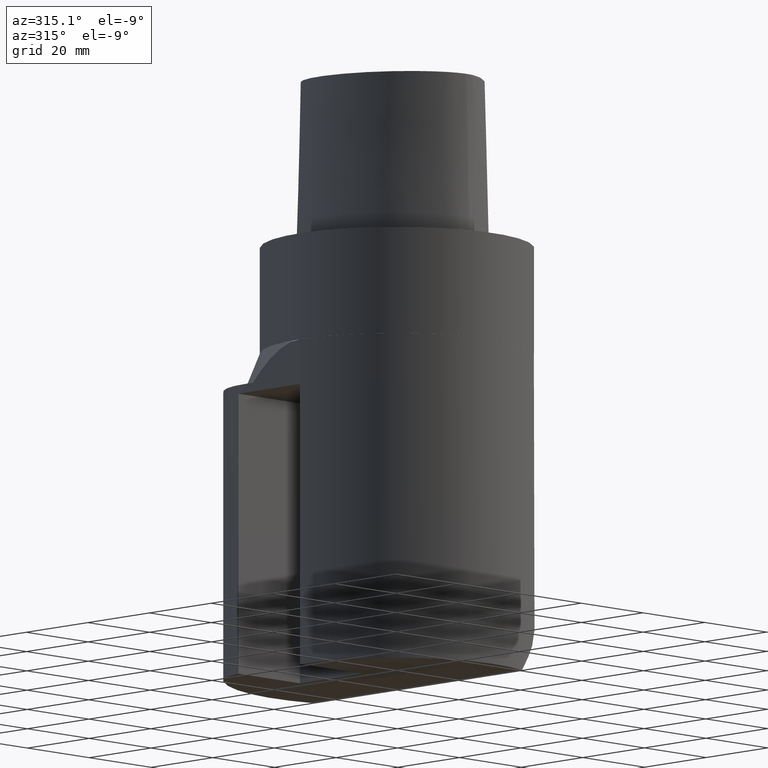
[diagram: clean part render]
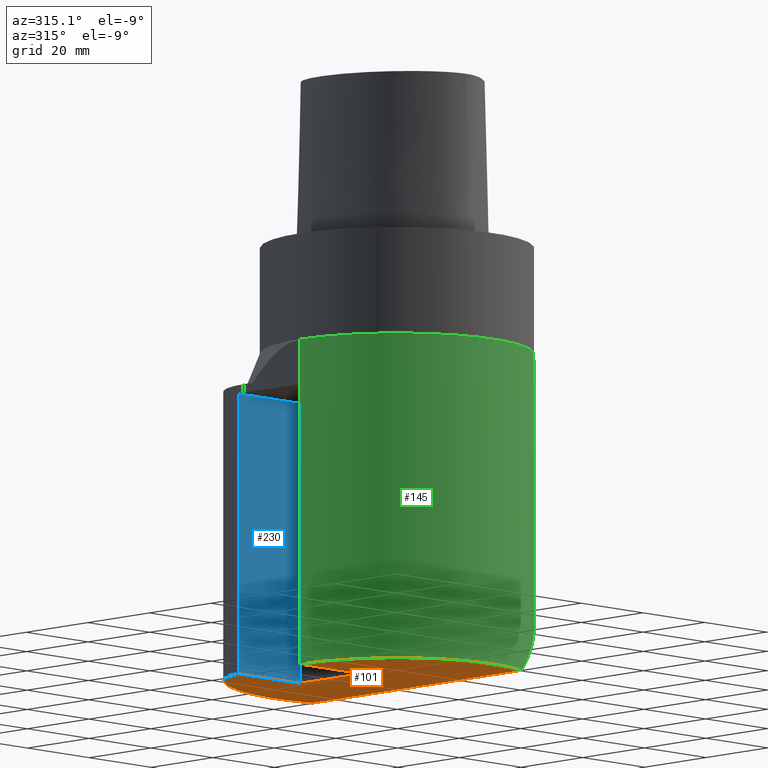
[diagram: same view with three faces highlighted in distinct colors, each labeled with its STEP entity id]
A machine part, auxiliary view with three faces highlighted in distinct colors.
Their STEP definitions:

[orange] entity #101 — the highlighted planar face has unit normal (-0, 0, 1).
#101=ADVANCED_FACE('240[2]',(#277),#278,.F.);
#151=EDGE_CURVE('240[2]',#300,#342,#357,.T.);
#168=EDGE_CURVE('240[2]',#378,#281,#379,.F.);
#192=EDGE_CURVE('240[2]',#350,#281,#408,.T.);
#197=EDGE_CURVE('240[2]',#342,#359,#415,.T.);
#236=EDGE_CURVE('240[2]',#446,#300,#461,.T.);
#238=EDGE_CURVE('240[2]',#446,#378,#463,.T.);
#240=EDGE_CURVE('240[2]',#359,#350,#465,.T.);
#277=FACE_OUTER_BOUND('',#497,.T.);
#278=PLANE('',#498);
#281=VERTEX_POINT('',#502);
#300=VERTEX_POINT('',#527);
#342=VERTEX_POINT('',#681);
#350=VERTEX_POINT('',#692);
#357=LINE('',#702,#703);
#359=VERTEX_POINT('',#706);
#378=VERTEX_POINT('',#744);
#379=LINE('',#745,#746);
#408=CIRCLE('',#890,31.5000000000001);
#415=LINE('',#899,#900);
#446=VERTEX_POINT('',#976);
#461=CIRCLE('',#999,16.0000000000003);
#463=CIRCLE('',#1002,40.0);
#465=LINE('',#1005,#1006);
#497=EDGE_LOOP('',(#1059,#1060,#1061,#1062,#1063,#1064,#1065));
#498=AXIS2_PLACEMENT_3D('',#1066,#1067,#1068);
#502=CARTESIAN_POINT('',(10.9999998252791,-29.5169443514038,-99.9999998226051));
#527=CARTESIAN_POINT('',(-31.4119228276271,20.0,-99.9999998226051));
#681=CARTESIAN_POINT('',(-11.5000000000002,20.0000000000005,-99.9999998226051));
#692=CARTESIAN_POINT('',(-31.5000000000001,-6.68634846303844E-013,-99.9999998226051));
#702=CARTESIAN_POINT('',(-10.7279807069069,20.0000000000005,-99.9999998226051));
#703=VECTOR('',#1129,1.0);
#706=CARTESIAN_POINT('',(-11.5,-2.39812849879307E-013,-99.9999998226051));
#744=CARTESIAN_POINT('',(10.9999998252788,38.457769096034,-99.9999998226051));
#745=CARTESIAN_POINT('',(10.9999998252788,-49.5,-99.9999998226051));
#746=VECTOR('',#1146,1.0);
#890=AXIS2_PLACEMENT_3D('',#1186,#1187,#1188);
#899=CARTESIAN_POINT('',(-11.5000000000002,14.95,-99.9999998226051));
#900=VECTOR('',#1197,1.0);
#976=CARTESIAN_POINT('',(-25.8333333333343,30.5391370030137,-99.9999998226051));
#999=AXIS2_PLACEMENT_3D('',#1262,#1263,#1264);
#1002=AXIS2_PLACEMENT_3D('',#1265,#1266,#1267);
#1005=CARTESIAN_POINT('',(-10.7499999999998,-2.23824056667614E-013,-99.9999998226051));
#1006=VECTOR('',#1268,1.0);
#1059=ORIENTED_EDGE('',*,*,#151,.F.);
#1060=ORIENTED_EDGE('',*,*,#236,.F.);
#1061=ORIENTED_EDGE('',*,*,#238,.T.);
#1062=ORIENTED_EDGE('',*,*,#168,.T.);
#1063=ORIENTED_EDGE('',*,*,#192,.F.);
#1064=ORIENTED_EDGE('',*,*,#240,.F.);
#1065=ORIENTED_EDGE('',*,*,#197,.F.);
#1066=CARTESIAN_POINT('',(3.67394038657976E-015,20.0,-99.9999998226051));
#1067=DIRECTION('',(-6.12323399573677E-017,1.22464679914735E-016,1.0));
#1068=DIRECTION('',(0.0,-1.0,1.22464679914735E-016));
#1129=DIRECTION('',(1.0,2.2960407294654E-014,6.12323399573649E-017));
#1146=DIRECTION('',(-1.22464679914735E-016,1.0,-1.22464679914735E-016));
#1186=CARTESIAN_POINT('',(6.12323398487446E-015,2.8421709430404E-014,-99.9999998226051));
#1187=DIRECTION('',(-6.12323399573677E-017,1.22464679914735E-016,1.0));
#1188=DIRECTION('',(-1.0,-2.44929359829471E-016,-6.12323399573677E-017));
#1197=DIRECTION('',(1.41926178632825E-014,-1.0,1.22464679914736E-016));
#1262=CARTESIAN_POINT('',(-15.5000000000002,18.3234822018082,-99.9999998226051));
#1263=DIRECTION('',(-6.12323399573677E-017,1.22464679914735E-016,1.0));
#1264=DIRECTION('',(-1.0,-2.44929359829471E-016,-6.12323399573677E-017));
#1265=CARTESIAN_POINT('',(6.12323398487446E-015,0.0,-99.9999998226051));
#1266=DIRECTION('',(6.12323399573677E-017,-1.22464679914735E-016,-1.0));
#1267=DIRECTION('',(-1.22464679914735E-016,1.0,-1.22464679914735E-016));
#1268=DIRECTION('',(-1.0,-2.1440865831655E-014,-6.12323399573651E-017));

[blue] entity #230 — the highlighted planar face has unit normal (0, -1, 0).
#114=EDGE_CURVE('240[2]',#300,#301,#302,.F.);
#142=EDGE_CURVE('240[2]',#342,#343,#344,.T.);
#151=EDGE_CURVE('240[2]',#300,#342,#357,.T.);
#206=EDGE_CURVE('240[2]',#343,#301,#425,.T.);
#230=ADVANCED_FACE('240[2]',(#454),#455,.T.);
#300=VERTEX_POINT('',#527);
#301=VERTEX_POINT('',#528);
#302=LINE('',#529,#530);
#342=VERTEX_POINT('',#681);
#343=VERTEX_POINT('',#682);
#344=LINE('',#683,#684);
#357=LINE('',#702,#703);
#425=LINE('',#914,#915);
#454=FACE_OUTER_BOUND('',#989,.T.);
#455=PLANE('',#990);
#527=CARTESIAN_POINT('',(-31.4119228276271,20.0,-99.9999998226051));
#528=CARTESIAN_POINT('',(-31.4119228276272,20.0,-34.9999998226051));
#529=CARTESIAN_POINT('',(-31.4119228276271,20.0000000000003,-244.999999822605));
#530=VECTOR('',#1085,1.0);
#681=CARTESIAN_POINT('',(-11.5000000000002,20.0000000000005,-99.9999998226051));
#682=CARTESIAN_POINT('',(-11.5000000000002,20.0000000000005,-34.9999998226051));
#683=CARTESIAN_POINT('',(-11.5000000000002,20.0000000000005,-244.999999822605));
#684=VECTOR('',#1114,1.0);
#702=CARTESIAN_POINT('',(-10.7279807069069,20.0000000000005,-99.9999998226051));
#703=VECTOR('',#1129,1.0);
#914=CARTESIAN_POINT('',(-11.5000000000002,20.0000000000005,-34.9999998226051));
#915=VECTOR('',#1213,1.0);
#989=EDGE_LOOP('',(#1249,#1250,#1251,#1252));
#990=AXIS2_PLACEMENT_3D('',#1253,#1254,#1255);
#1085=DIRECTION('',(6.12323399573677E-017,-1.22464679914735E-016,-1.0));
#1114=DIRECTION('',(-6.12323399573677E-017,1.22464679914735E-016,1.0));
#1129=DIRECTION('',(1.0,2.2960407294654E-014,6.12323399573649E-017));
#1213=DIRECTION('',(-1.0,-2.2960407294654E-014,-6.12323399573649E-017));
#1249=ORIENTED_EDGE('',*,*,#206,.T.);
#1250=ORIENTED_EDGE('',*,*,#114,.F.);
#1251=ORIENTED_EDGE('',*,*,#151,.T.);
#1252=ORIENTED_EDGE('',*,*,#142,.T.);
#1253=CARTESIAN_POINT('',(-21.4559614138137,20.0000000000003,-244.999999822605));
#1254=DIRECTION('',(3.44350954537625E-046,-1.0,1.2246467991421E-016));
#1255=DIRECTION('',(-1.0,0.0,2.81183893003969E-030));

[green] entity #145 — the highlighted cylindrical surface (partial cylindrical patch) has radius 31.5 mm, axis along (0, -0, -1).
#103=EDGE_CURVE('240[2]',#280,#281,#282,.T.);
#145=ADVANCED_FACE('240[2]',(#347),#348,.T.);
#147=EDGE_CURVE('240[2]',#350,#311,#351,.T.);
#190=EDGE_CURVE('240[2]',#371,#280,#406,.T.);
#192=EDGE_CURVE('240[2]',#350,#281,#408,.T.);
#234=EDGE_CURVE('240[2]',#371,#304,#459,.T.);
#242=EDGE_CURVE('240[2]',#311,#304,#467,.T.);
#280=VERTEX_POINT('',#501);
#281=VERTEX_POINT('',#502);
#282=ELLIPSE('',#503,44.5477272147523,31.5000000000001);
#304=VERTEX_POINT('',#533);
#311=VERTEX_POINT('',#551);
#347=FACE_OUTER_BOUND('',#688,.T.);
#348=CYLINDRICAL_SURFACE('',#689,31.5000000000001);
#350=VERTEX_POINT('',#692);
#351=LINE('',#693,#694);
#371=VERTEX_POINT('',#726);
#406=ELLIPSE('',#887,361.421967238607,31.5000000000001);
#408=CIRCLE('',#890,31.5000000000001);
#459=CIRCLE('',#996,31.5000000000001);
#467=LINE('',#1009,#1010);
#501=CARTESIAN_POINT('',(26.175122523835,-17.5246386799338,-84.824877124049));
#502=CARTESIAN_POINT('',(10.9999998252791,-29.5169443514038,-99.9999998226051));
#503=AXIS2_PLACEMENT_3D('',#1069,#1070,#1071);
#533=CARTESIAN_POINT('',(-31.5000000000003,-3.97903932025656E-013,-24.5943962641397));
#551=CARTESIAN_POINT('',(-31.5000000000002,-5.15078432459043E-013,-34.9999998226051));
#688=EDGE_LOOP('',(#1116,#1117,#1118,#1119,#1120,#1121));
#689=AXIS2_PLACEMENT_3D('',#1122,#1123,#1124);
#692=CARTESIAN_POINT('',(-31.5000000000001,-6.68634846303844E-013,-99.9999998226051));
#693=CARTESIAN_POINT('',(-31.5000000000001,-6.86392221660319E-013,-244.999999822605));
#694=VECTOR('',#1125,1.0);
#726=CARTESIAN_POINT('',(31.4446067977921,-1.86727162787003,-24.5943962641391));
#887=AXIS2_PLACEMENT_3D('',#1183,#1184,#1185);
#890=AXIS2_PLACEMENT_3D('',#1186,#1187,#1188);
#996=AXIS2_PLACEMENT_3D('',#1259,#1260,#1261);
#1009=CARTESIAN_POINT('',(-31.5000000000003,-4.2632564145606E-013,-244.999999822605));
#1010=VECTOR('',#1269,1.0);
#1069=CARTESIAN_POINT('',(6.79678971370691E-015,0.0,-110.999999647884));
#1070=DIRECTION('',(0.707106781186542,-1.40316553605932E-030,-0.707106781186553));
#1071=DIRECTION('',(-0.707106781186553,-2.59786816870649E-016,-0.707106781186542));
#1116=ORIENTED_EDGE('',*,*,#242,.F.);
#1117=ORIENTED_EDGE('',*,*,#147,.F.);
#1118=ORIENTED_EDGE('',*,*,#192,.T.);
#1119=ORIENTED_EDGE('',*,*,#103,.F.);
#1120=ORIENTED_EDGE('',*,*,#190,.F.);
#1121=ORIENTED_EDGE('',*,*,#234,.T.);
#1122=CARTESIAN_POINT('',(1.50019232786928E-014,0.0,-244.999999822605));
#1123=DIRECTION('',(6.12323399573677E-017,-1.22464679914735E-016,-1.0));
#1124=DIRECTION('',(-1.0,-2.44929359829471E-016,-6.12323399573677E-017));
#1125=DIRECTION('',(-6.12323399573677E-017,1.22464679914735E-016,1.0));
#1183=CARTESIAN_POINT('',(2.35137020710886E-014,-2.8421709430404E-014,-384.007896602674));
#1184=DIRECTION('',(0.996194698091746,1.11325164696239E-016,-0.0871557427476567));
#1185=DIRECTION('',(-0.0871557427476567,-1.43345665111208E-016,-0.996194698091746));
#1186=CARTESIAN_POINT('',(6.12323398487446E-015,2.8421709430404E-014,-99.9999998226051));
#1187=DIRECTION('',(-6.12323399573677E-017,1.22464679914735E-016,1.0));
#1188=DIRECTION('',(-1.0,-2.44929359829471E-016,-6.12323399573677E-017));
#1259=CARTESIAN_POINT('',(1.50597243309197E-015,2.8421709430404E-014,-24.5943962641391));
#1260=DIRECTION('',(6.12323399573677E-017,-1.22464679914735E-016,-1.0));
#1261=DIRECTION('',(-1.0,-2.44929359829471E-016,-6.12323399573677E-017));
#1269=DIRECTION('',(-6.12323399573677E-017,1.22464679914735E-016,1.0));